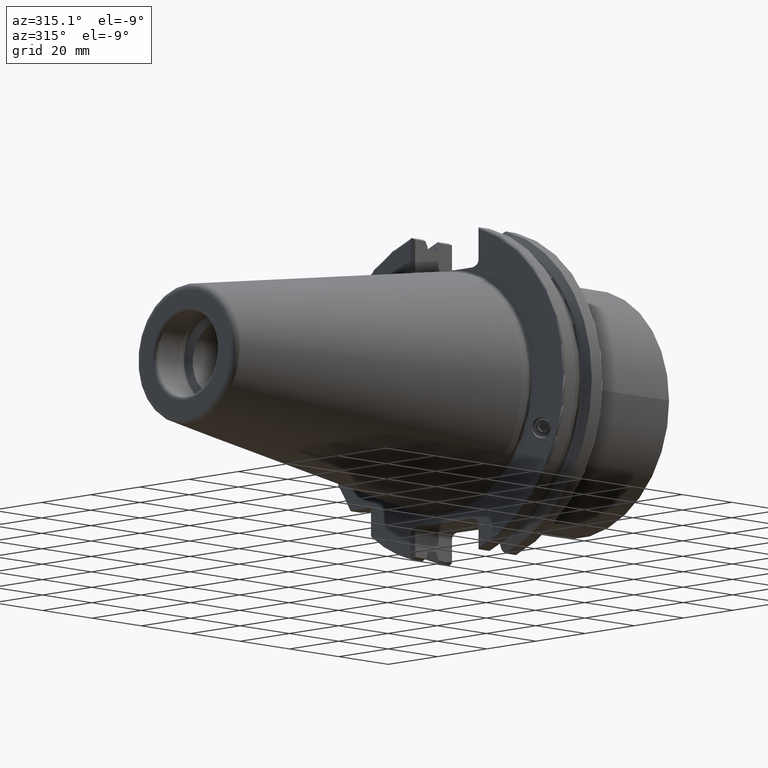
[diagram: clean part render]
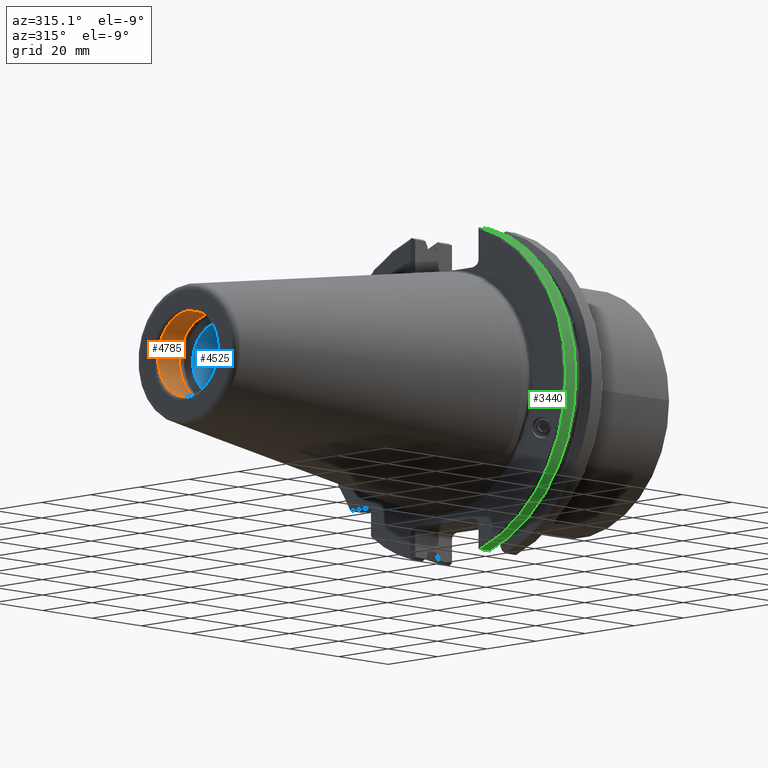
[diagram: same view with three faces highlighted in distinct colors, each labeled with its STEP entity id]
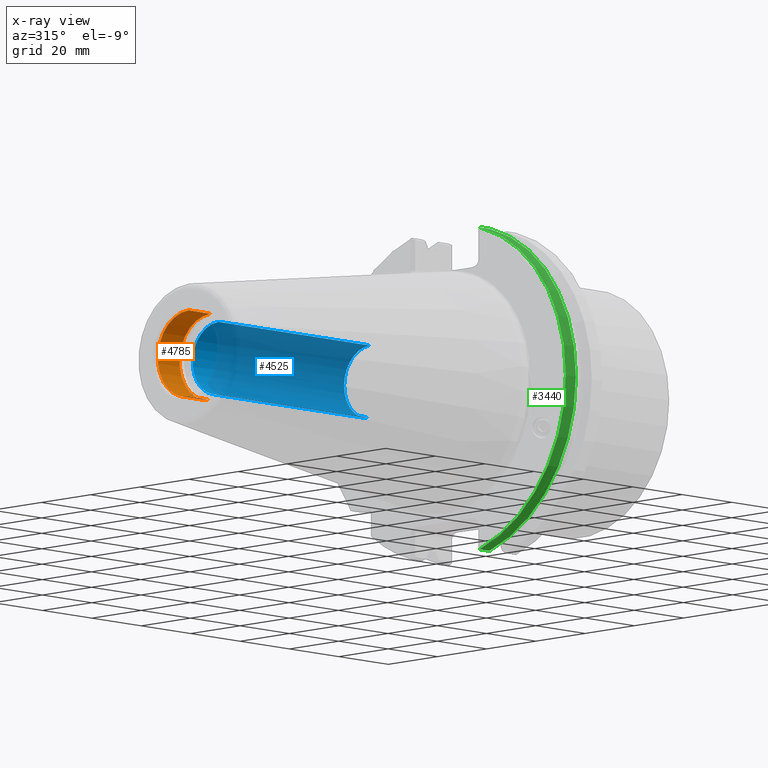
[diagram: x-ray of the same camera — body ghosted, the three highlighted faces saturated]
A machine part, auxiliary view with three faces highlighted in distinct colors.
The next image is the same camera in x-ray (body ghosted, the three faces saturated) — at least one of them is partly hidden behind the body in this view.
Their STEP definitions:

[orange] entity #4785 — the highlighted cylindrical surface (partial cylindrical patch) has radius 12.5 mm, axis along (-1, -0, -0).
#174 = CARTESIAN_POINT ( 'NONE',  ( -100.3999999999999900, 0.0000000000000000000, 0.0000000000000000000 ) ) ;
#589 = DIRECTION ( 'NONE',  ( -1.000000000000000000, -0.0000000000000000000, -0.0000000000000000000 ) ) ;
#656 = DIRECTION ( 'NONE',  ( 0.0000000000000000000, 0.0000000000000000000, 1.000000000000000000 ) ) ;
#740 = EDGE_CURVE ( 'NONE', #2977, #2520, #2871, .T. ) ;
#832 = AXIS2_PLACEMENT_3D ( 'NONE', #4716, #1913, #5181 ) ;
#854 = AXIS2_PLACEMENT_3D ( 'NONE', #174, #3388, #656 ) ;
#1056 = DIRECTION ( 'NONE',  ( 0.0000000000000000000, 0.0000000000000000000, 1.000000000000000000 ) ) ;
#1391 = VERTEX_POINT ( 'NONE', #1454 ) ;
#1454 = CARTESIAN_POINT ( 'NONE',  ( -91.59999999999999400, 1.543751198869225500E-015, 12.50000000000000000 ) ) ;
#1459 = EDGE_CURVE ( 'NONE', #1391, #2210, #2630, .T. ) ;
#1680 = VECTOR ( 'NONE', #5351, 1000.000000000000000 ) ;
#1884 = CIRCLE ( 'NONE', #854, 12.49999999999999800 ) ;
#1913 = DIRECTION ( 'NONE',  ( -1.000000000000000000, -0.0000000000000000000, -0.0000000000000000000 ) ) ;
#2023 = FACE_OUTER_BOUND ( 'NONE', #3270, .T. ) ;
#2142 = VECTOR ( 'NONE', #5902, 1000.000000000000000 ) ;
#2210 = VERTEX_POINT ( 'NONE', #4124 ) ;
#2520 = VERTEX_POINT ( 'NONE', #5218 ) ;
#2625 = CIRCLE ( 'NONE', #832, 12.50000000000000000 ) ;
#2630 = LINE ( 'NONE', #5160, #2142 ) ;
#2871 = LINE ( 'NONE', #5485, #1680 ) ;
#2977 = VERTEX_POINT ( 'NONE', #4098 ) ;
#3270 = EDGE_LOOP ( 'NONE', ( #4713, #4784, #4997, #5003 ) ) ;
#3388 = DIRECTION ( 'NONE',  ( -1.000000000000000000, -0.0000000000000000000, -0.0000000000000000000 ) ) ;
#4062 = CYLINDRICAL_SURFACE ( 'NONE', #4594, 12.50000000000000000 ) ;
#4098 = CARTESIAN_POINT ( 'NONE',  ( -91.59999999999999400, 0.0000000000000000000, -12.50000000000000000 ) ) ;
#4124 = CARTESIAN_POINT ( 'NONE',  ( -100.3999999999999900, 0.0000000000000000000, 12.49999999999999800 ) ) ;
#4297 = CARTESIAN_POINT ( 'NONE',  ( -110.3186507936507800, 0.0000000000000000000, 0.0000000000000000000 ) ) ;
#4381 = EDGE_CURVE ( 'NONE', #2210, #2520, #1884, .T. ) ;
#4594 = AXIS2_PLACEMENT_3D ( 'NONE', #4297, #589, #1056 ) ;
#4713 = ORIENTED_EDGE ( 'NONE', *, *, #740, .F. ) ;
#4716 = CARTESIAN_POINT ( 'NONE',  ( -91.59999999999999400, 0.0000000000000000000, 0.0000000000000000000 ) ) ;
#4784 = ORIENTED_EDGE ( 'NONE', *, *, #5349, .F. ) ;
#4785 = ADVANCED_FACE ( 'NONE', ( #2023 ), #4062, .F. ) ;
#4997 = ORIENTED_EDGE ( 'NONE', *, *, #1459, .T. ) ;
#5003 = ORIENTED_EDGE ( 'NONE', *, *, #4381, .T. ) ;
#5160 = CARTESIAN_POINT ( 'NONE',  ( -110.3186507936507800, 0.0000000000000000000, 12.50000000000000000 ) ) ;
#5181 = DIRECTION ( 'NONE',  ( 0.0000000000000000000, 0.0000000000000000000, 1.000000000000000000 ) ) ;
#5218 = CARTESIAN_POINT ( 'NONE',  ( -100.3999999999999900, 1.604287306883032800E-015, -12.50000000000000000 ) ) ;
#5349 = EDGE_CURVE ( 'NONE', #1391, #2977, #2625, .T. ) ;
#5351 = DIRECTION ( 'NONE',  ( -1.000000000000000000, -0.0000000000000000000, -0.0000000000000000000 ) ) ;
#5485 = CARTESIAN_POINT ( 'NONE',  ( -110.3186507936507800, 1.530808498934191500E-015, -12.50000000000000000 ) ) ;
#5902 = DIRECTION ( 'NONE',  ( -1.000000000000000000, -0.0000000000000000000, -0.0000000000000000000 ) ) ;

[blue] entity #4525 — the highlighted cylindrical surface (partial cylindrical patch) has radius 10.5 mm, axis along (-1, -0, -0).
#30 = CARTESIAN_POINT ( 'NONE',  ( -110.3186507936507800, 1.285879139104720600E-015, -10.49999999999999800 ) ) ;
#631 = DIRECTION ( 'NONE',  ( 1.000000000000000000, 1.541467589183333400E-016, -0.0000000000000000000 ) ) ;
#817 = CARTESIAN_POINT ( 'NONE',  ( -27.00183628846409400, -2.848563469031005500E-015, 0.0000000000000000000 ) ) ;
#883 = AXIS2_PLACEMENT_3D ( 'NONE', #2923, #2941, #3061 ) ;
#1280 = EDGE_CURVE ( 'NONE', #3403, #3851, #3341, .T. ) ;
#1306 = AXIS2_PLACEMENT_3D ( 'NONE', #4906, #4654, #4608 ) ;
#1351 = CIRCLE ( 'NONE', #883, 10.49999999999999500 ) ;
#1574 = CARTESIAN_POINT ( 'NONE',  ( -88.31539565105309500, 1.285879139104720400E-015, -10.49999999999999500 ) ) ;
#1580 = EDGE_CURVE ( 'NONE', #2004, #4389, #1351, .T. ) ;
#1582 = AXIS2_PLACEMENT_3D ( 'NONE', #2199, #2644, #4513 ) ;
#1916 = AXIS2_PLACEMENT_3D ( 'NONE', #817, #631, #3905 ) ;
#1958 = CYLINDRICAL_SURFACE ( 'NONE', #1582, 10.49999999999999800 ) ;
#2004 = VERTEX_POINT ( 'NONE', #4522 ) ;
#2108 = EDGE_CURVE ( 'NONE', #3118, #4389, #5684, .T. ) ;
#2199 = CARTESIAN_POINT ( 'NONE',  ( -110.3186507936507800, 0.0000000000000000000, 0.0000000000000000000 ) ) ;
#2408 = ORIENTED_EDGE ( 'NONE', *, *, #2108, .F. ) ;
#2478 = ORIENTED_EDGE ( 'NONE', *, *, #3619, .T. ) ;
#2486 = ORIENTED_EDGE ( 'NONE', *, *, #1280, .T. ) ;
#2518 = EDGE_CURVE ( 'NONE', #3851, #2004, #3343, .T. ) ;
#2550 = ORIENTED_EDGE ( 'NONE', *, *, #2518, .T. ) ;
#2618 = ORIENTED_EDGE ( 'NONE', *, *, #1580, .T. ) ;
#2644 = DIRECTION ( 'NONE',  ( -1.000000000000000000, -0.0000000000000000000, -0.0000000000000000000 ) ) ;
#2681 = CARTESIAN_POINT ( 'NONE',  ( -27.00183628846409400, 10.49999999999999800, 0.0000000000000000000 ) ) ;
#2694 = DIRECTION ( 'NONE',  ( -1.000000000000000000, -0.0000000000000000000, -0.0000000000000000000 ) ) ;
#2923 = CARTESIAN_POINT ( 'NONE',  ( -88.31539565105309500, 0.0000000000000000000, 0.0000000000000000000 ) ) ;
#2941 = DIRECTION ( 'NONE',  ( -1.000000000000000000, -0.0000000000000000000, -0.0000000000000000000 ) ) ;
#3061 = DIRECTION ( 'NONE',  ( 0.0000000000000000000, 0.0000000000000000000, 1.000000000000000000 ) ) ;
#3118 = VERTEX_POINT ( 'NONE', #5148 ) ;
#3128 = VECTOR ( 'NONE', #4886, 1000.000000000000000 ) ;
#3308 = CIRCLE ( 'NONE', #1306, 10.50000000000000200 ) ;
#3341 = CIRCLE ( 'NONE', #1916, 10.50000000000000200 ) ;
#3343 = LINE ( 'NONE', #5477, #3128 ) ;
#3403 = VERTEX_POINT ( 'NONE', #2681 ) ;
#3456 = EDGE_LOOP ( 'NONE', ( #2408, #2478, #2486, #2550, #2618 ) ) ;
#3619 = EDGE_CURVE ( 'NONE', #3118, #3403, #3308, .T. ) ;
#3829 = CARTESIAN_POINT ( 'NONE',  ( -27.00183628846409400, 7.703719777548943400E-031, 10.50000000000000000 ) ) ;
#3851 = VERTEX_POINT ( 'NONE', #3829 ) ;
#3905 = DIRECTION ( 'NONE',  ( 0.0000000000000000000, 1.000000000000000000, 0.0000000000000000000 ) ) ;
#4389 = VERTEX_POINT ( 'NONE', #1574 ) ;
#4513 = DIRECTION ( 'NONE',  ( 0.0000000000000000000, 0.0000000000000000000, 1.000000000000000000 ) ) ;
#4522 = CARTESIAN_POINT ( 'NONE',  ( -88.31539565105309500, 0.0000000000000000000, 10.49999999999999500 ) ) ;
#4525 = ADVANCED_FACE ( 'NONE', ( #5623 ), #1958, .F. ) ;
#4608 = DIRECTION ( 'NONE',  ( 0.0000000000000000000, 1.000000000000000000, 0.0000000000000000000 ) ) ;
#4654 = DIRECTION ( 'NONE',  ( 1.000000000000000000, 1.541467589183333400E-016, -0.0000000000000000000 ) ) ;
#4886 = DIRECTION ( 'NONE',  ( -1.000000000000000000, -0.0000000000000000000, -0.0000000000000000000 ) ) ;
#4906 = CARTESIAN_POINT ( 'NONE',  ( -27.00183628846409400, -2.848563469031005500E-015, 0.0000000000000000000 ) ) ;
#5148 = CARTESIAN_POINT ( 'NONE',  ( -27.00183628846409400, 1.285879139104721800E-015, -10.50000000000000000 ) ) ;
#5477 = CARTESIAN_POINT ( 'NONE',  ( -110.3186507936507800, 0.0000000000000000000, 10.49999999999999800 ) ) ;
#5496 = VECTOR ( 'NONE', #2694, 1000.000000000000000 ) ;
#5623 = FACE_OUTER_BOUND ( 'NONE', #3456, .T. ) ;
#5684 = LINE ( 'NONE', #30, #5496 ) ;

[green] entity #3440 — the highlighted cylindrical surface (partial cylindrical patch) has radius 48.725 mm, axis along (-1, -0, -0).
#18 = CYLINDRICAL_SURFACE ( 'NONE', #1720, 48.72500000000000100 ) ;
#135 = CARTESIAN_POINT ( 'NONE',  ( 7.866838492538094300, -13.62981141010645400, -46.77984465477553800 ) ) ;
#294 = EDGE_CURVE ( 'NONE', #3490, #1449, #1299, .T. ) ;
#435 = FACE_OUTER_BOUND ( 'NONE', #2130, .T. ) ;
#836 = EDGE_CURVE ( 'NONE', #4315, #4308, #906, .T. ) ;
#906 = CIRCLE ( 'NONE', #1903, 48.72500000000000100 ) ;
#1001 = CARTESIAN_POINT ( 'NONE',  ( 3.799999999999998000, -13.62981141010645400, -46.77984465477553800 ) ) ;
#1114 = ORIENTED_EDGE ( 'NONE', *, *, #294, .F. ) ;
#1226 = LINE ( 'NONE', #1277, #4134 ) ;
#1277 = CARTESIAN_POINT ( 'NONE',  ( -110.3186507936507800, -13.80224425262892800, 46.72925934134599400 ) ) ;
#1299 = CIRCLE ( 'NONE', #4232, 48.72500000000000100 ) ;
#1411 = CARTESIAN_POINT ( 'NONE',  ( -110.3186507936507800, -13.62981141010644100, -46.77984465477555200 ) ) ;
#1415 = CARTESIAN_POINT ( 'NONE',  ( 7.866838492538094300, 0.0000000000000000000, 0.0000000000000000000 ) ) ;
#1449 = VERTEX_POINT ( 'NONE', #2675 ) ;
#1572 = DIRECTION ( 'NONE',  ( -1.000000000000000000, -0.0000000000000000000, -0.0000000000000000000 ) ) ;
#1720 = AXIS2_PLACEMENT_3D ( 'NONE', #1995, #1976, #2032 ) ;
#1903 = AXIS2_PLACEMENT_3D ( 'NONE', #1415, #1572, #2278 ) ;
#1976 = DIRECTION ( 'NONE',  ( -1.000000000000000000, -0.0000000000000000000, -0.0000000000000000000 ) ) ;
#1995 = CARTESIAN_POINT ( 'NONE',  ( -110.3186507936507800, 0.0000000000000000000, 0.0000000000000000000 ) ) ;
#2032 = DIRECTION ( 'NONE',  ( 0.0000000000000000000, 0.0000000000000000000, 1.000000000000000000 ) ) ;
#2130 = EDGE_LOOP ( 'NONE', ( #5044, #3632, #1114, #4843 ) ) ;
#2278 = DIRECTION ( 'NONE',  ( 0.0000000000000000000, 0.0000000000000000000, 1.000000000000000000 ) ) ;
#2365 = EDGE_CURVE ( 'NONE', #4308, #1449, #1226, .T. ) ;
#2675 = CARTESIAN_POINT ( 'NONE',  ( 3.799999999999998000, -13.80224425262892600, 46.72925934134599400 ) ) ;
#3440 = ADVANCED_FACE ( 'NONE', ( #435 ), #18, .T. ) ;
#3490 = VERTEX_POINT ( 'NONE', #1001 ) ;
#3524 = LINE ( 'NONE', #1411, #5816 ) ;
#3607 = DIRECTION ( 'NONE',  ( -1.000000000000000000, -0.0000000000000000000, -0.0000000000000000000 ) ) ;
#3632 = ORIENTED_EDGE ( 'NONE', *, *, #2365, .T. ) ;
#4134 = VECTOR ( 'NONE', #3607, 1000.000000000000000 ) ;
#4232 = AXIS2_PLACEMENT_3D ( 'NONE', #5533, #5518, #5446 ) ;
#4308 = VERTEX_POINT ( 'NONE', #4795 ) ;
#4315 = VERTEX_POINT ( 'NONE', #135 ) ;
#4682 = DIRECTION ( 'NONE',  ( 1.000000000000000000, 0.0000000000000000000, 0.0000000000000000000 ) ) ;
#4685 = EDGE_CURVE ( 'NONE', #3490, #4315, #3524, .T. ) ;
#4795 = CARTESIAN_POINT ( 'NONE',  ( 7.866838492538094300, -13.80224425262892600, 46.72925934134599400 ) ) ;
#4843 = ORIENTED_EDGE ( 'NONE', *, *, #4685, .T. ) ;
#5044 = ORIENTED_EDGE ( 'NONE', *, *, #836, .T. ) ;
#5446 = DIRECTION ( 'NONE',  ( 0.0000000000000000000, 0.0000000000000000000, 1.000000000000000000 ) ) ;
#5518 = DIRECTION ( 'NONE',  ( -1.000000000000000000, -0.0000000000000000000, -0.0000000000000000000 ) ) ;
#5533 = CARTESIAN_POINT ( 'NONE',  ( 3.799999999999998000, 0.0000000000000000000, 0.0000000000000000000 ) ) ;
#5816 = VECTOR ( 'NONE', #4682, 1000.000000000000000 ) ;